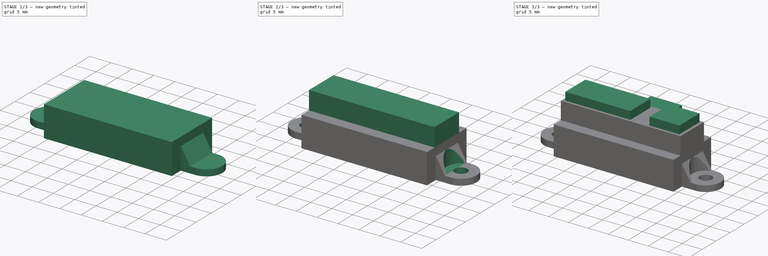
[diagram: build sequence overview — one tinted view per stage of 3, left to right]
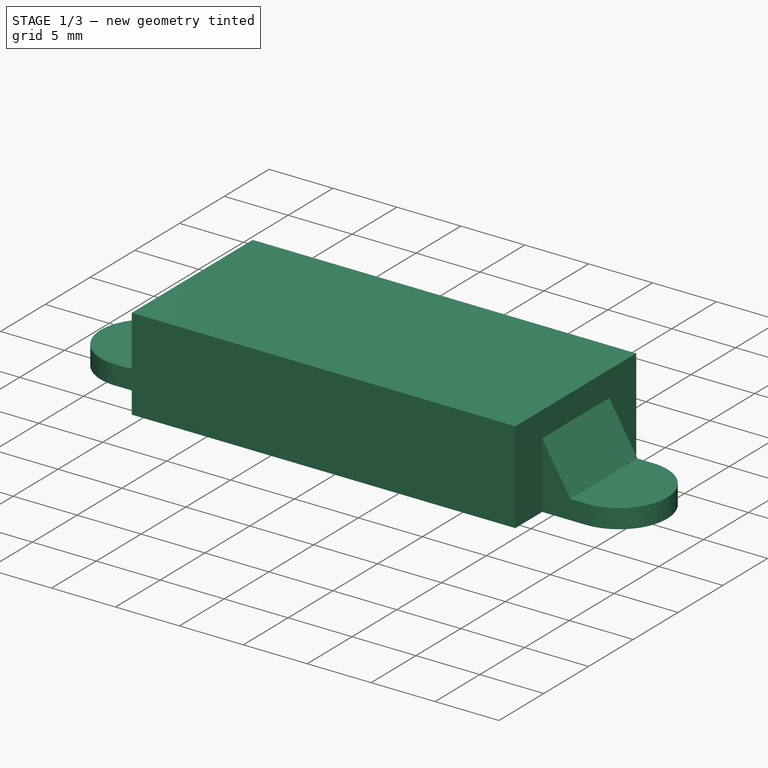
[diagram: stage 1 of 3 — iso view after this stage's code; geometry added in this stage tinted green]
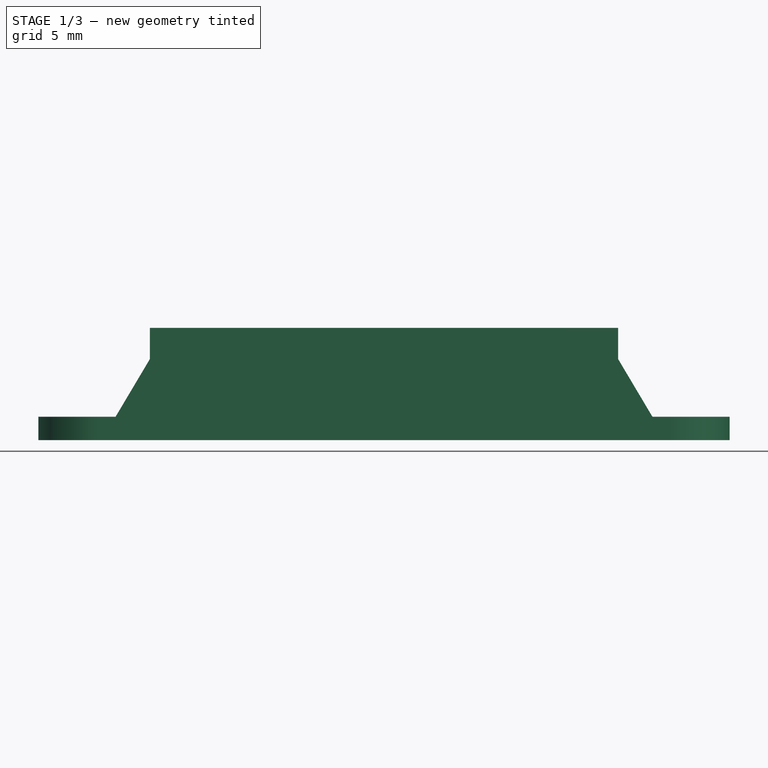
[diagram: stage 1 of 3 — front view after this stage's code; geometry added in this stage tinted green]
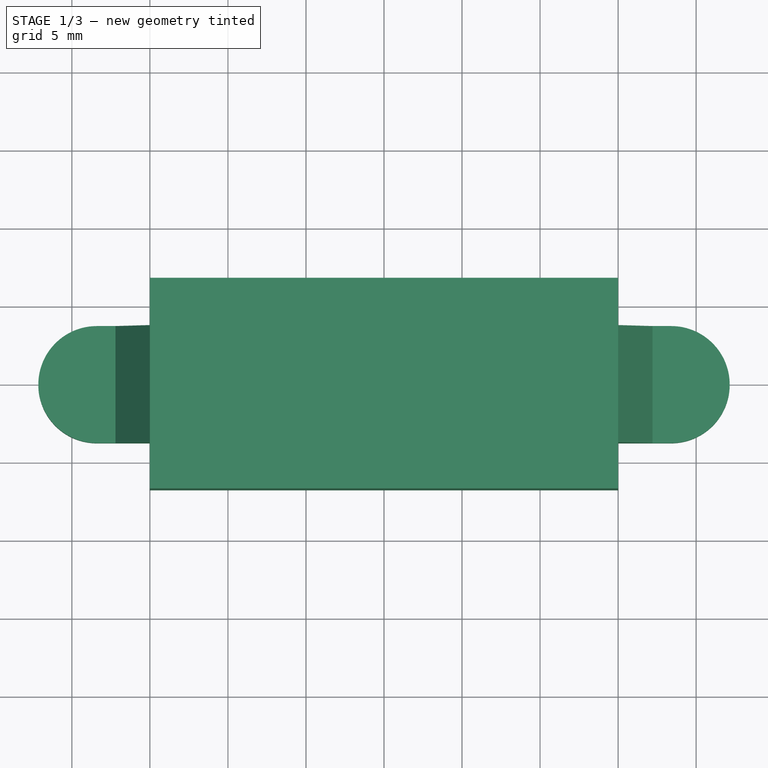
[diagram: stage 1 of 3 — top view after this stage's code; geometry added in this stage tinted green]
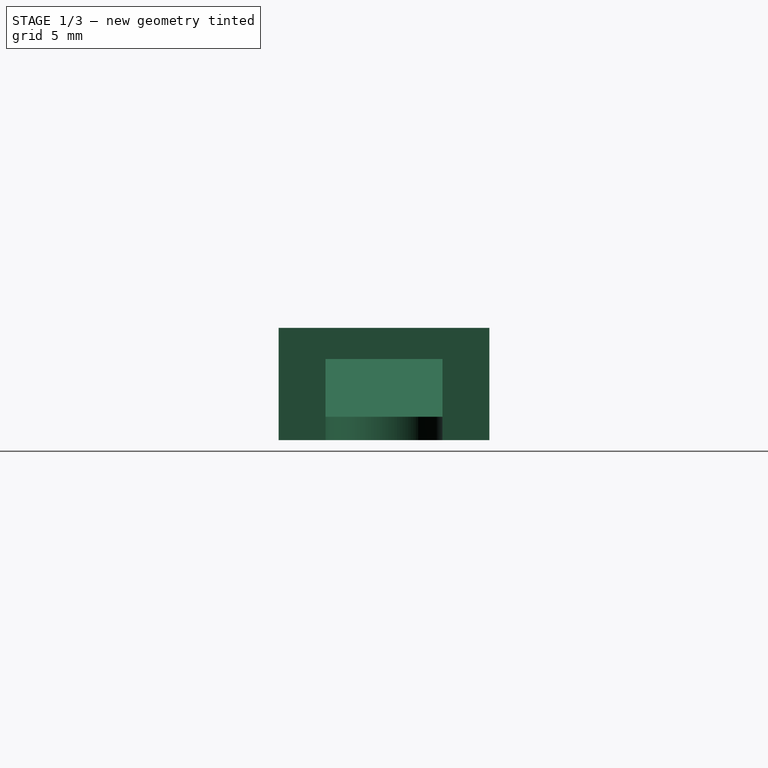
[diagram: stage 1 of 3 — right view after this stage's code; geometry added in this stage tinted green]
FCSTD DOCUMENT  (FreeCAD 0.21R30716 (Git))
Label: SHARP-0A41SK
License: All rights reserved
LicenseURL: http://en.wikipedia.org/wiki/All_rights_reserved
objects: Sketcher::SketchObject×8, PartDesign::Pad×4, PartDesign::Pocket×3, Part::Feature×1
note: 23 computed .brp shape members not serialized (recipe doc carries the construction recipe); baked Part::Feature solids carry a one-line shape summary decoded from their .brp

FEATURE [Sketcher::SketchObject] Sketch
  FullyConstrained = false
  MapMode = 5
  sketch-geometry (12):
    g0: ArcOfCircle CenterX=-18.4 CenterY=0 CenterZ=0 NormalX=0 NormalY=0 NormalZ=1 AngleXU=0 Radius=3.75 StartAngle=1.5708 EndAngle=4.71239
    g1: ArcOfCircle CenterX=18.4 CenterY=0 CenterZ=0 NormalX=0 NormalY=0 NormalZ=1 AngleXU=0 Radius=3.75 StartAngle=4.71239 EndAngle=7.85398
    g2: LineSegment StartX=-18.4 StartY=3.75 StartZ=0 EndX=-15 EndY=3.75 EndZ=0
    g3: LineSegment StartX=-15 StartY=3.75 StartZ=0 EndX=-15 EndY=6.75 EndZ=0
    g4: LineSegment StartX=-15 StartY=6.75 StartZ=0 EndX=15 EndY=6.75 EndZ=0
    g5: LineSegment StartX=15 StartY=6.75 StartZ=0 EndX=15 EndY=3.75 EndZ=0
    g6: LineSegment StartX=15 StartY=3.75 StartZ=0 EndX=18.4 EndY=3.75 EndZ=0
    g7: LineSegment StartX=-18.4 StartY=-3.75 StartZ=0 EndX=-15 EndY=-3.75 EndZ=0
    g8: LineSegment StartX=-15 StartY=-3.75 StartZ=0 EndX=-15 EndY=-6.75 EndZ=0
    g9: LineSegment StartX=-15 StartY=-6.75 StartZ=0 EndX=15 EndY=-6.75 EndZ=0
    g10: LineSegment StartX=15 StartY=-6.75 StartZ=0 EndX=15 EndY=-3.75 EndZ=0
    g11: LineSegment StartX=15 StartY=-3.75 StartZ=0 EndX=18.4 EndY=-3.75 EndZ=0
  constraints (34):
    c: PointOnObject(g0,g-1)
    c: PointOnObject(g1,g-1)
    c: DistanceX(g1,g0) = -36.8
    c: Radius(g1) = 3.75
    c: Equal(g1,g0)
    c: DistanceX(g-1,g1) = 18.4
    c: Horizontal(g2)
    c: Coincident(g2,g3)
    c: Vertical(g3)
    c: Coincident(g3,g4)
    c: Horizontal(g4)
    c: Coincident(g4,g5)
    c: Vertical(g5)
    c: Coincident(g5,g6)
    c: Horizontal(g7)
    c: Coincident(g7,g8)
    c: Coincident(g8,g9)
    c: Horizontal(g9)
    c: Coincident(g9,g10)
    c: Vertical(g10)
    c: Coincident(g10,g11)
    c: Horizontal(g11)
    c: Vertical(g8)
    c: Tangent(g7,g0) = -1.5708
    c: Tangent(g0,g2) = 1.5708
    c: Tangent(g1,g6) = 1.5708
    c: Horizontal(g6)
    c: Tangent(g1,g11) = -1.5708
    c: DistanceX(g4) = 30
    c: DistanceX(g-1,g4) = 15
    c: DistanceX(g-1,g9) = 15
    c: DistanceX(g9) = 30
    c: DistanceY(g5) = -3
    c: DistanceY(g10) = 3
FEATURE [PartDesign::Pad] Pad
  AllowMultiFace = false
  Direction = (1,1,1)
  Length = 7.2
  Length2 = 100
  Profile = -> Sketch
  Type = 0
FEATURE [Sketcher::SketchObject] Sketch001
  FullyConstrained = false
  MapMode = 5
  Placement = pos=(0,-6.75,0) rot=(1,0,0;1.5708rad)
  Support = -> [Pad]
  sketch-geometry (10):
    g0: LineSegment StartX=15 StartY=7.2 StartZ=0 EndX=15 EndY=5.2 EndZ=0
    g1: LineSegment StartX=15 StartY=5.2 StartZ=0 EndX=17.2 EndY=1.5 EndZ=0
    g2: LineSegment StartX=17.2 StartY=1.5 StartZ=0 EndX=22.2 EndY=1.5 EndZ=0
    g3: LineSegment StartX=22.2 StartY=1.5 StartZ=0 EndX=22.2 EndY=7.2 EndZ=0
    g4: LineSegment StartX=22.2 StartY=7.2 StartZ=0 EndX=15 EndY=7.2 EndZ=0
    g5: LineSegment StartX=-15 StartY=7.2 StartZ=0 EndX=-15 EndY=5.2 EndZ=0
    g6: LineSegment StartX=-15 StartY=5.2 StartZ=0 EndX=-17.2 EndY=1.5 EndZ=0
    g7: LineSegment StartX=-17.2 StartY=1.5 StartZ=0 EndX=-22.2 EndY=1.5 EndZ=0
    g8: LineSegment StartX=-22.2 StartY=1.5 StartZ=0 EndX=-22.2 EndY=7.2 EndZ=0
    g9: LineSegment StartX=-22.2 StartY=7.2 StartZ=0 EndX=-15 EndY=7.2 EndZ=0
  constraints (30):
    c: Vertical(g0)
    c: Coincident(g0,g1)
    c: Coincident(g1,g2)
    c: Horizontal(g2)
    c: Coincident(g2,g3)
    c: Vertical(g3)
    c: Coincident(g3,g4)
    c: Horizontal(g4)
    c: Coincident(g0,g4)
    c: Vertical(g5)
    c: Coincident(g5,g6)
    c: Coincident(g6,g7)
    c: Coincident(g7,g8)
    c: Vertical(g8)
    c: Coincident(g8,g9)
    c: Horizontal(g9)
    c: Coincident(g5,g9)
    c: Horizontal(g7)
    c: DistanceY(g5) = -2
    c: DistanceY(g-1,g5) = 7.2
    c: DistanceY(g0) = -2
    c: DistanceY(g-1,g0) = 7.2
    c: DistanceX(g2) = 5
    c: DistanceX(g-1,g3) = 22.2
    c: DistanceX(g-1,g8) = -22.2
    c: DistanceY(g-1,g2) = 1.5
    c: DistanceY(g-1,g7) = 1.5
    c: DistanceX(g7) = -5
    c: DistanceX(g4) = -7.2
    c: DistanceX(g9) = 7.2
FEATURE [PartDesign::Pocket] Pocket
  AllowMultiFace = false
  Direction = (1,1,1)
  Length = 14
  Length2 = 5
  Profile = -> Sketch001
  Type = 0
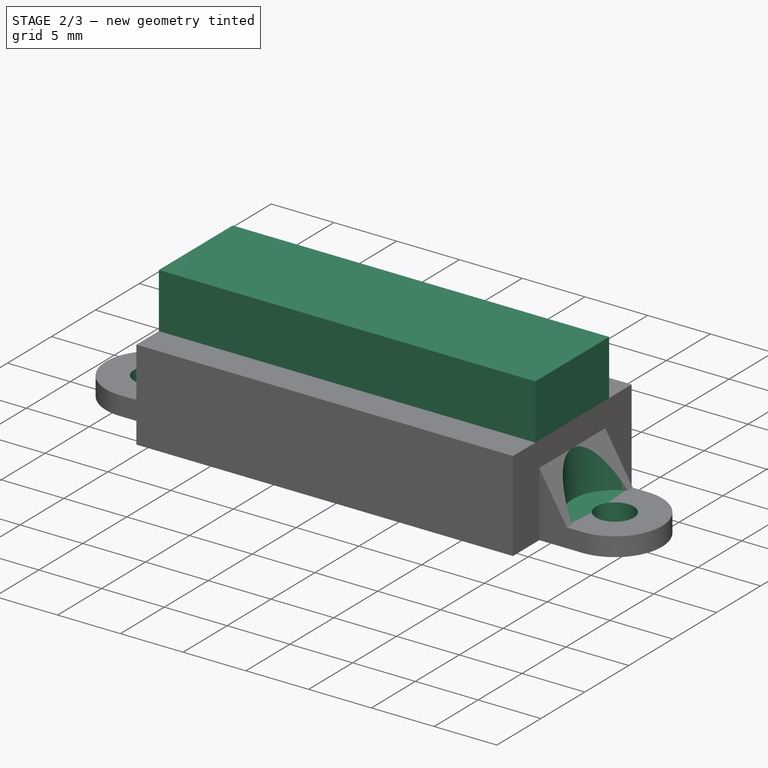
[diagram: stage 2 of 3 — iso view after this stage's code; geometry added in this stage tinted green]
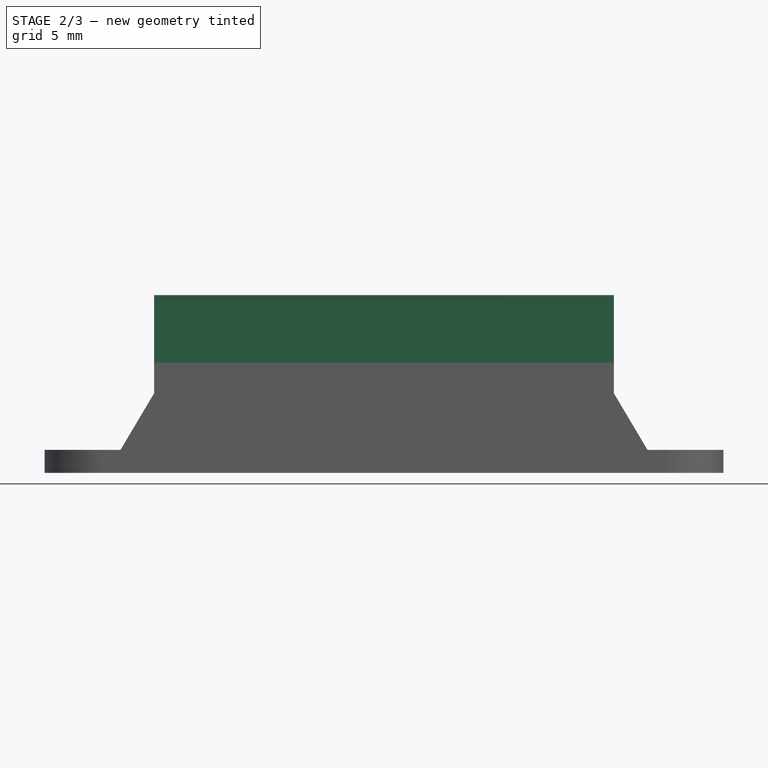
[diagram: stage 2 of 3 — front view after this stage's code; geometry added in this stage tinted green]
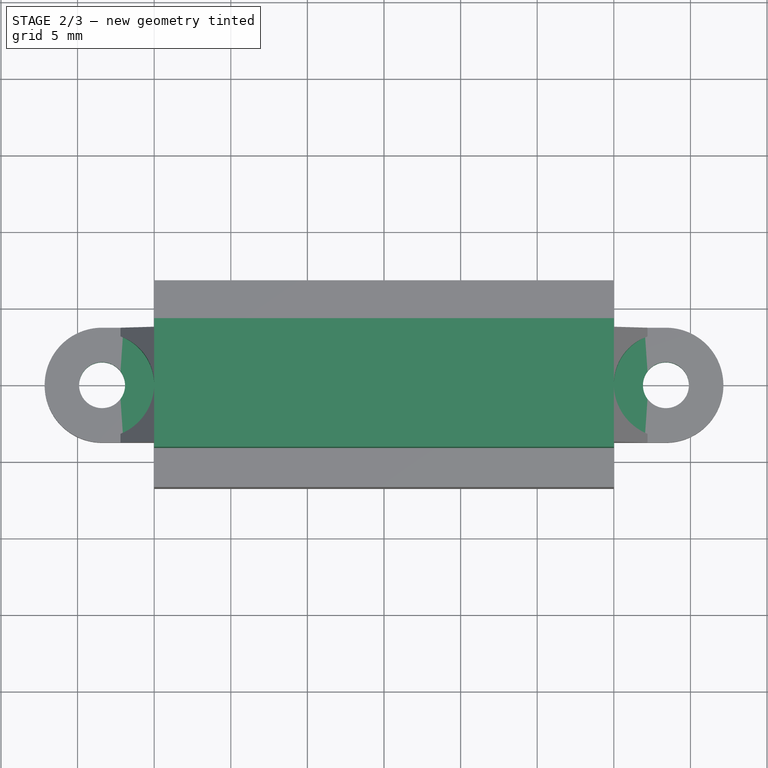
[diagram: stage 2 of 3 — top view after this stage's code; geometry added in this stage tinted green]
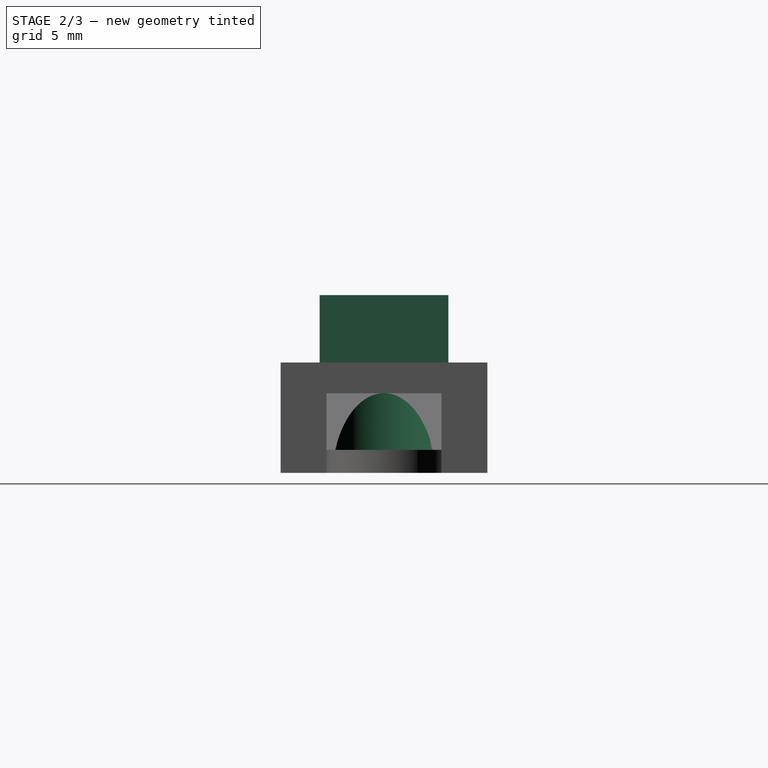
[diagram: stage 2 of 3 — right view after this stage's code; geometry added in this stage tinted green]
FEATURE [Sketcher::SketchObject] Sketch002
  FullyConstrained = false
  MapMode = 5
  Placement = pos=(0,0,7.2) rot=(0,0,1;0rad)
  Support = -> [Pocket]
  sketch-geometry (2):
    g0: Circle CenterX=-18.4 CenterY=0 CenterZ=0 NormalX=0 NormalY=0 NormalZ=1 AngleXU=0 Radius=3.4
    g1: Circle CenterX=18.4 CenterY=0 CenterZ=0 NormalX=0 NormalY=0 NormalZ=1 AngleXU=0 Radius=3.4
  constraints (6):
    c: PointOnObject(g0,g-1)
    c: PointOnObject(g1,g-1)
    c: Equal(g1,g0)
    c: Radius(g1) = 3.4
    c: DistanceX(g1,g0) = -36.8
    c: DistanceX(g-1,g1) = 18.4
FEATURE [PartDesign::Pocket] Pocket001
  AllowMultiFace = false
  Direction = (1,1,1)
  Length = 5.7
  Length2 = 5
  Profile = -> Sketch002
  Type = 0
FEATURE [Sketcher::SketchObject] Sketch003
  FullyConstrained = false
  MapMode = 5
  Placement = pos=(0,0,7.2) rot=(0,0,1;0rad)
  Support = -> [Pocket001]
  sketch-geometry (2):
    g0: Circle CenterX=-18.4 CenterY=0 CenterZ=0 NormalX=0 NormalY=0 NormalZ=1 AngleXU=0 Radius=1.5
    g1: Circle CenterX=18.4 CenterY=0 CenterZ=0 NormalX=0 NormalY=0 NormalZ=1 AngleXU=0 Radius=1.5
  constraints (6):
    c: PointOnObject(g0,g-1)
    c: PointOnObject(g1,g-1)
    c: Equal(g1,g0)
    c: Radius(g1) = 1.5
    c: DistanceX(g1,g0) = -36.8
    c: DistanceX(g-1,g1) = 18.4
FEATURE [PartDesign::Pocket] Pocket002
  AllowMultiFace = false
  Direction = (1,1,1)
  Length = 8
  Length2 = 5
  Profile = -> Sketch003
  Type = 0
FEATURE [Sketcher::SketchObject] Sketch004
  FullyConstrained = false
  MapMode = 5
  Placement = pos=(0,0,7.2) rot=(0,0,1;0rad)
  Support = -> [Pocket002]
  sketch-geometry (20):
    g0: LineSegment StartX=-13 StartY=6.75 StartZ=0 EndX=-8 EndY=6.75 EndZ=0
    g1: LineSegment StartX=-8 StartY=-6.75 StartZ=0 EndX=-13 EndY=-6.75 EndZ=0
    g2: LineSegment StartX=-15 StartY=-4.75 StartZ=0 EndX=-15 EndY=4.75 EndZ=0
    g3: LineSegment StartX=6.5 StartY=6.75 StartZ=0 EndX=13 EndY=6.75 EndZ=0
    g4: LineSegment StartX=15 StartY=4.75 StartZ=0 EndX=15 EndY=-4.75 EndZ=0
    g5: LineSegment StartX=13 StartY=-6.75 StartZ=0 EndX=6.5 EndY=-6.75 EndZ=0
    g6: LineSegment StartX=-6 StartY=4.75 StartZ=0 EndX=-6 EndY=1.71967 EndZ=0
    g7: LineSegment StartX=-6 StartY=1.71967 StartZ=0 EndX=4.5 EndY=1.71967 EndZ=0
    g8: LineSegment StartX=4.5 StartY=1.71967 StartZ=0 EndX=4.5 EndY=4.75 EndZ=0
    g9: LineSegment StartX=-6 StartY=-4.75 StartZ=0 EndX=-6 EndY=-2.02753 EndZ=0
    g10: LineSegment StartX=-6 StartY=-2.02753 StartZ=0 EndX=4.5 EndY=-2.02753 EndZ=0
    g11: LineSegment StartX=4.5 StartY=-2.02753 StartZ=0 EndX=4.5 EndY=-4.75 EndZ=0
    g12: ArcOfCircle CenterX=-8 CenterY=4.75 CenterZ=0 NormalX=0 NormalY=0 NormalZ=1 AngleXU=0 Radius=2 StartAngle=0 EndAngle=1.5708
    g13: ArcOfCircle CenterX=-13 CenterY=4.75 CenterZ=0 NormalX=0 NormalY=0 NormalZ=1 AngleXU=0 Radius=2 StartAngle=1.5708 EndAngle=3.14159
    g14: ArcOfCircle CenterX=-13 CenterY=-4.75 CenterZ=0 NormalX=0 NormalY=0 NormalZ=1 AngleXU=0 Radius=2 StartAngle=3.14159 EndAngle=4.71239
    g15: ArcOfCircle CenterX=-8 CenterY=-4.75 CenterZ=0 NormalX=0 NormalY=0 NormalZ=1 AngleXU=0 Radius=2 StartAngle=4.71239 EndAngle=6.28319
    g16: ArcOfCircle CenterX=6.5 CenterY=-4.75 CenterZ=0 NormalX=0 NormalY=0 NormalZ=1 AngleXU=0 Radius=2 StartAngle=3.14159 EndAngle=4.71239
    g17: ArcOfCircle CenterX=13 CenterY=-4.75 CenterZ=0 NormalX=0 NormalY=0 NormalZ=1 AngleXU=0 Radius=2 StartAngle=4.71239 EndAngle=6.28319
    g18: ArcOfCircle CenterX=13 CenterY=4.75 CenterZ=0 NormalX=0 NormalY=0 NormalZ=1 AngleXU=0 Radius=2 StartAngle=0 EndAngle=1.5708
    g19: ArcOfCircle CenterX=6.5 CenterY=4.75 CenterZ=0 NormalX=0 NormalY=0 NormalZ=1 AngleXU=0 Radius=2 StartAngle=1.5708 EndAngle=3.14159
  constraints (50):
    c: Horizontal(g0)
    c: Horizontal(g1)
    c: Vertical(g2)
    c: Horizontal(g3)
    c: Horizontal(g5)
    c: Vertical(g4)
    c: Vertical(g6)
    c: Coincident(g6,g7)
    c: Horizontal(g7)
    c: Coincident(g7,g8)
    c: Vertical(g8)
    c: Vertical(g9)
    c: Coincident(g9,g10)
    c: Horizontal(g10)
    c: Coincident(g10,g11)
    c: Vertical(g11)
    c: Tangent(g6,g12) = 1.5708
    c: Tangent(g0,g12) = 1.5708
    c: Tangent(g0,g13) = 1.5708
    c: Tangent(g2,g13) = 1.5708
    c: Tangent(g2,g14) = 1.5708
    c: Tangent(g1,g14) = 1.5708
    c: Tangent(g1,g15) = 1.5708
    c: Tangent(g9,g15) = -1.5708
    c: Tangent(g11,g16) = -1.5708
    c: Tangent(g5,g16) = 1.5708
    c: Tangent(g5,g17) = 1.5708
    c: Tangent(g4,g17) = 1.5708
    c: Tangent(g4,g18) = 1.5708
    c: Tangent(g3,g18) = 1.5708
    c: Tangent(g8,g19) = 1.5708
    c: Tangent(g3,g19) = 1.5708
    c: Equal(g13,g12)
    c: Equal(g12,g19)
    c: Equal(g19,g18)
    c: Equal(g18,g17)
    c: Equal(g17,g16)
    c: Equal(g16,g15)
    c: Equal(g15,g14)
    c: Radius(g13) = 2
    c: DistanceY(g0,g1) = -13.5
    c: DistanceY(g-1,g0) = 6.75
    c: DistanceY(g3,g5) = -13.5
    c: DistanceY(g-1,g3) = 6.75
    c: DistanceX(g4,g2) = -30
    c: DistanceX(g-1,g4) = 15
    c: DistanceX(g8,g4) = 10.5
    c: DistanceX(g11,g4) = 10.5
    c: DistanceX(g6,g2) = -9
    c: DistanceX(g9,g2) = -9
FEATURE [Sketcher::SketchObject] Sketch006
  FullyConstrained = false
  MapMode = 5
  Placement = pos=(0,0,7.2) rot=(0,0,1;0rad)
  Support = -> [Pocket002]
  sketch-geometry (4):
    g0: LineSegment StartX=-15 StartY=4.2 StartZ=0 EndX=15 EndY=4.2 EndZ=0
    g1: LineSegment StartX=15 StartY=4.2 StartZ=0 EndX=15 EndY=-4.2 EndZ=0
    g2: LineSegment StartX=15 StartY=-4.2 StartZ=0 EndX=-15 EndY=-4.2 EndZ=0
    g3: LineSegment StartX=-15 StartY=-4.2 StartZ=0 EndX=-15 EndY=4.2 EndZ=0
  constraints (12):
    c: Coincident(g0,g1)
    c: Coincident(g1,g2)
    c: Coincident(g2,g3)
    c: Coincident(g3,g0)
    c: Horizontal(g0)
    c: Horizontal(g2)
    c: Vertical(g1)
    c: Vertical(g3)
    c: DistanceY(g1) = -8.4
    c: DistanceY(g-1,g0) = 4.2
    c: DistanceX(g0) = 30
    c: DistanceX(g-1,g0) = 15
FEATURE [PartDesign::Pad] Pad001
  AllowMultiFace = false
  Direction = (1,1,1)
  Length = 4.4
  Length2 = 100
  Profile = -> Sketch006
  Type = 0
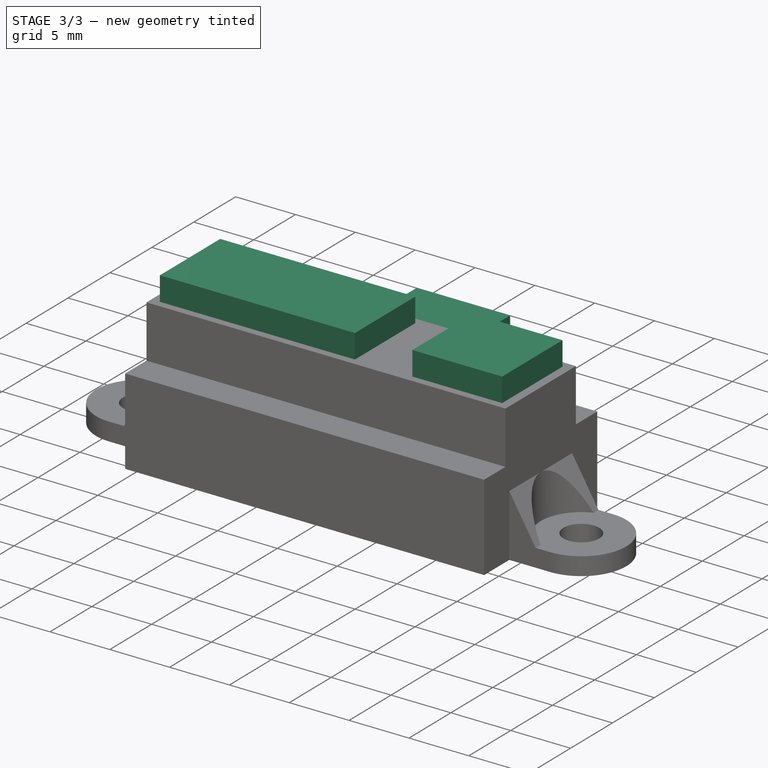
[diagram: stage 3 of 3 — iso view after this stage's code; geometry added in this stage tinted green]
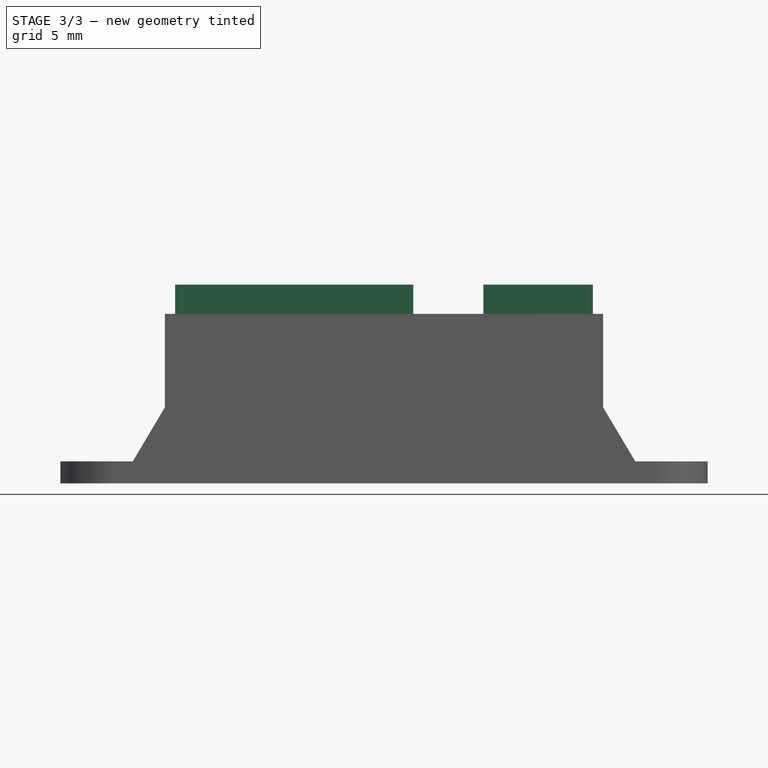
[diagram: stage 3 of 3 — front view after this stage's code; geometry added in this stage tinted green]
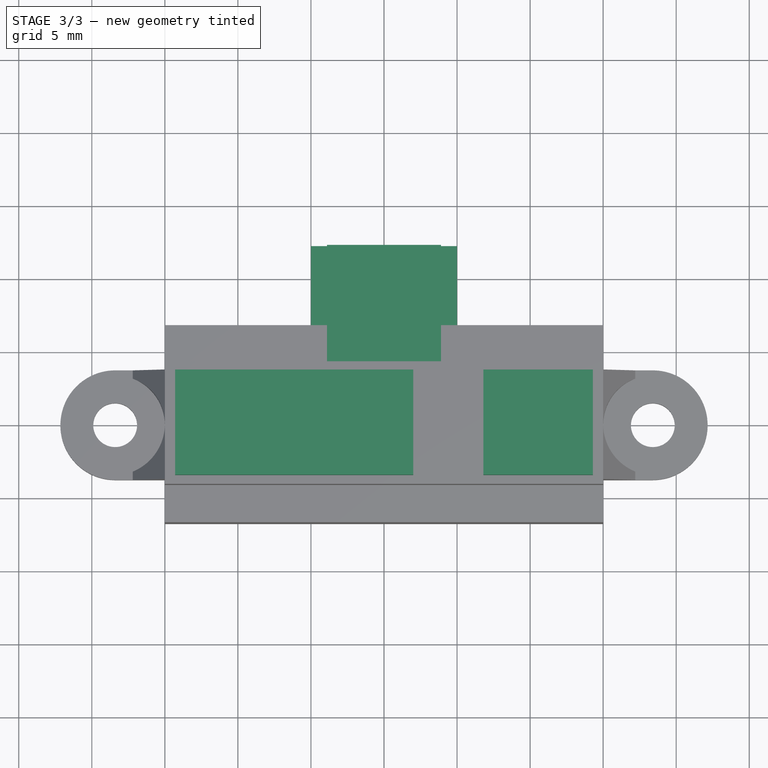
[diagram: stage 3 of 3 — top view after this stage's code; geometry added in this stage tinted green]
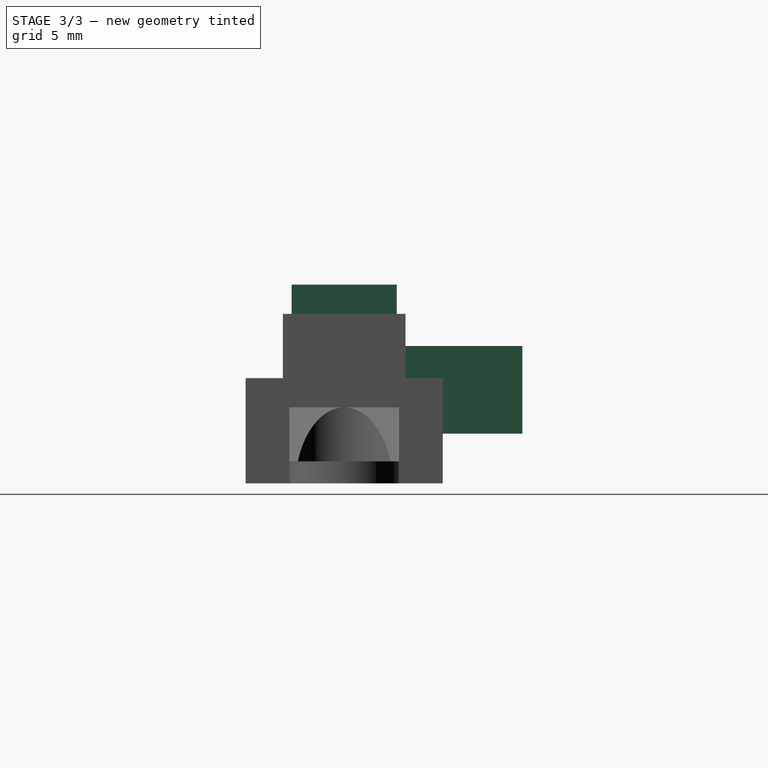
[diagram: stage 3 of 3 — right view after this stage's code; geometry added in this stage tinted green]
FEATURE [Sketcher::SketchObject] Sketch007
  FullyConstrained = false
  MapMode = 5
  Placement = pos=(0,0,11.6) rot=(0,0,1;0rad)
  Support = -> [Pad001]
  sketch-geometry (8):
    g0: LineSegment StartX=-14.3 StartY=3.6 StartZ=0 EndX=2 EndY=3.6 EndZ=0
    g1: LineSegment StartX=2 StartY=3.6 StartZ=0 EndX=2 EndY=-3.6 EndZ=0
    g2: LineSegment StartX=2 StartY=-3.6 StartZ=0 EndX=-14.3 EndY=-3.6 EndZ=0
    g3: LineSegment StartX=-14.3 StartY=-3.6 StartZ=0 EndX=-14.3 EndY=3.6 EndZ=0
    g4: LineSegment StartX=6.8 StartY=3.6 StartZ=0 EndX=14.3 EndY=3.6 EndZ=0
    g5: LineSegment StartX=14.3 StartY=3.6 StartZ=0 EndX=14.3 EndY=-3.6 EndZ=0
    g6: LineSegment StartX=14.3 StartY=-3.6 StartZ=0 EndX=6.8 EndY=-3.6 EndZ=0
    g7: LineSegment StartX=6.8 StartY=-3.6 StartZ=0 EndX=6.8 EndY=3.6 EndZ=0
  constraints (24):
    c: Coincident(g0,g1)
    c: Coincident(g1,g2)
    c: Coincident(g2,g3)
    c: Coincident(g3,g0)
    c: Horizontal(g0)
    c: Horizontal(g2)
    c: Vertical(g1)
    c: Vertical(g3)
    c: DistanceX(g0) = 16.3
    c: DistanceX(g-1,g0) = -14.3
    c: DistanceY(g3) = 7.2
    c: DistanceY(g-1,g0) = 3.6
    c: Coincident(g4,g5)
    c: Coincident(g5,g6)
    c: Coincident(g6,g7)
    c: Coincident(g7,g4)
    c: Horizontal(g4)
    c: Horizontal(g6)
    c: Vertical(g5)
    c: Vertical(g7)
    c: DistanceY(g5) = -7.2
    c: DistanceY(g-1,g4) = 3.6
    c: DistanceX(g4) = 7.5
    c: DistanceX(g-1,g4) = 14.3
FEATURE [PartDesign::Pad] Pad002
  AllowMultiFace = false
  Direction = (1,1,1)
  Length = 2
  Length2 = 100
  Profile = -> Sketch007
  Type = 0
FEATURE [Sketcher::SketchObject] Sketch005
  FullyConstrained = false
  MapMode = 5
  Placement = pos=(0,4.2,0) rot=(0,0.707107,0.707107;3.14159rad)
  Support = -> [Pad002]
  sketch-geometry (8):
    g0: LineSegment StartX=-5 StartY=3.4 StartZ=0 EndX=5 EndY=3.4 EndZ=0
    g1: LineSegment StartX=5 StartY=3.4 StartZ=0 EndX=5 EndY=4.6 EndZ=0
    g2: LineSegment StartX=5 StartY=4.6 StartZ=0 EndX=3.9 EndY=4.6 EndZ=0
    g3: LineSegment StartX=3.9 StartY=4.6 StartZ=0 EndX=3.9 EndY=9.4 EndZ=0
    g4: LineSegment StartX=3.9 StartY=9.4 StartZ=0 EndX=-3.9 EndY=9.4 EndZ=0
    g5: LineSegment StartX=-3.9 StartY=9.4 StartZ=0 EndX=-3.9 EndY=4.6 EndZ=0
    g6: LineSegment StartX=-3.9 StartY=4.6 StartZ=0 EndX=-5 EndY=4.6 EndZ=0
    g7: LineSegment StartX=-5 StartY=4.6 StartZ=0 EndX=-5 EndY=3.4 EndZ=0
  constraints (24):
    c: Horizontal(g0)
    c: Coincident(g0,g1)
    c: Vertical(g1)
    c: Coincident(g1,g2)
    c: Horizontal(g2)
    c: Coincident(g2,g3)
    c: Vertical(g3)
    c: Coincident(g3,g4)
    c: Horizontal(g4)
    c: Coincident(g4,g5)
    c: Vertical(g5)
    c: Coincident(g5,g6)
    c: Horizontal(g6)
    c: Coincident(g6,g7)
    c: Vertical(g7)
    c: Coincident(g0,g7)
    c: Distance(g7) = 1.2
    c: Equal(g1,g7)
    c: DistanceX(g4) = -7.8
    c: DistanceX(g-1,g3) = 3.9
    c: DistanceX(g0) = 10
    c: DistanceX(g-1,g0) = 5
    c: DistanceY(g-1,g0) = 3.4
    c: DistanceY(g0,g3) = 6
FEATURE [PartDesign::Pad] Pad003
  AllowMultiFace = false
  Direction = (1,1,1)
  Length = 8
  Length2 = 100
  Profile = -> Sketch005
  Type = 0
FEATURE [Part::Feature] Pad003001  label="Pad004"
  shape: bbox 44.3 x 18.95 x 13.6 mm, 46 faces (baked)
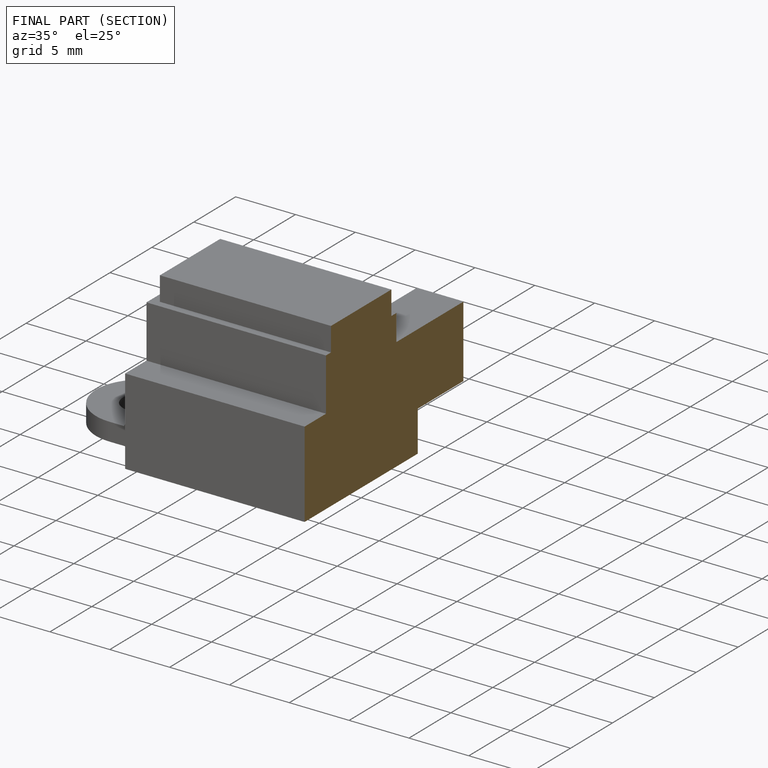
[diagram: finished part — half-section view (interior)]
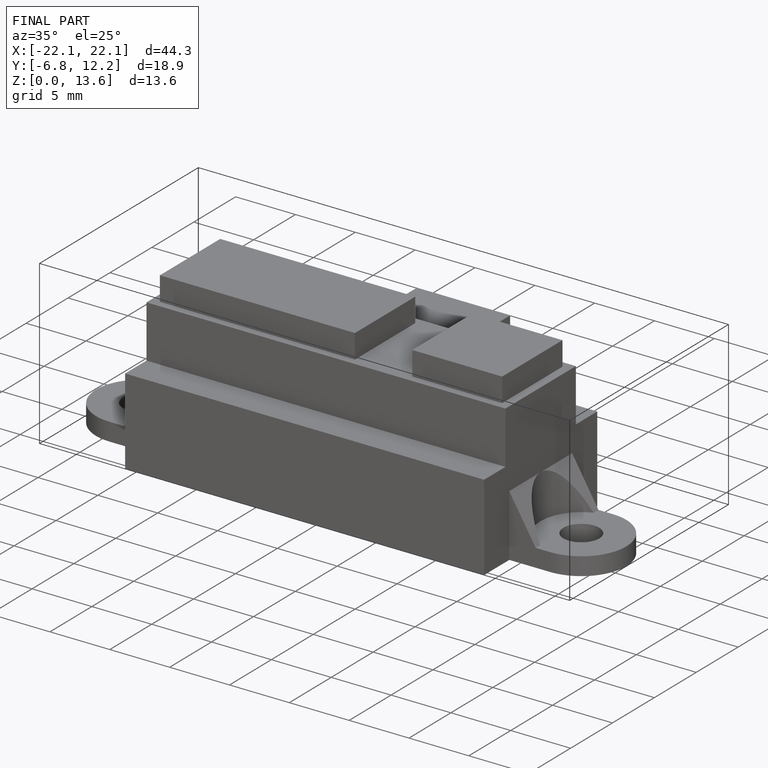
[diagram: finished part — iso view with bounding-box wireframe]
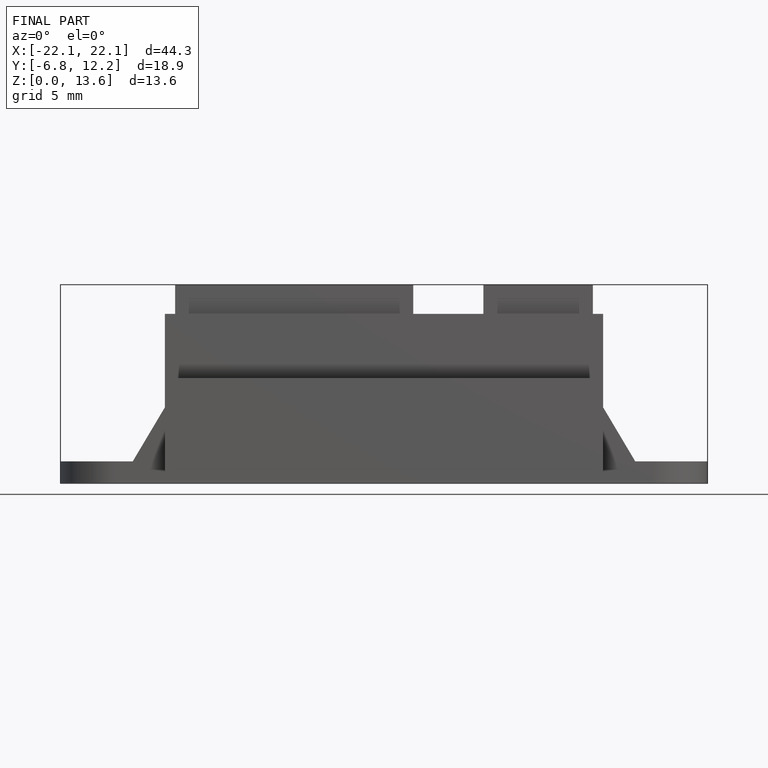
[diagram: finished part — front view with bounding-box wireframe]
